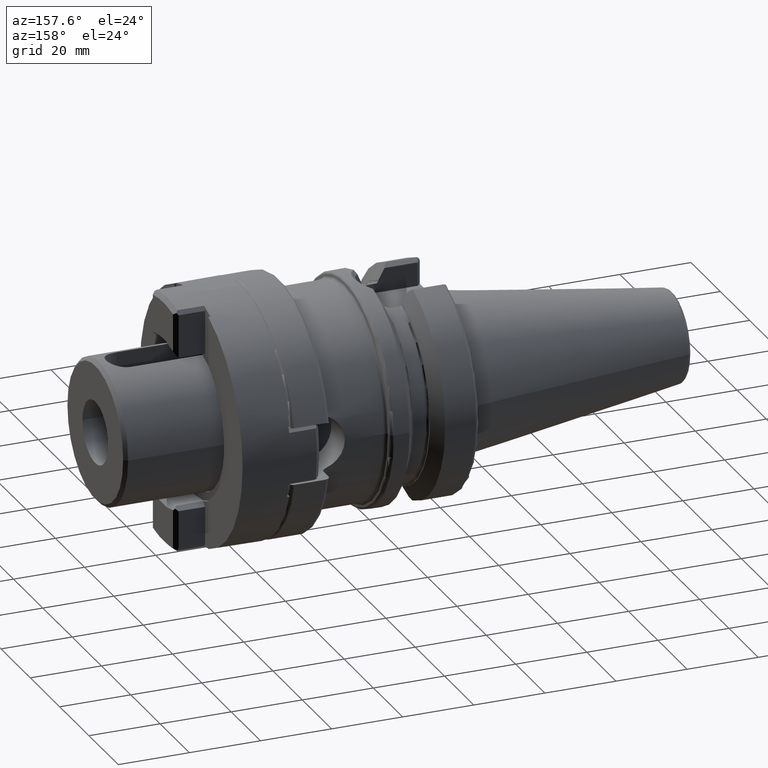
[diagram: clean part render]
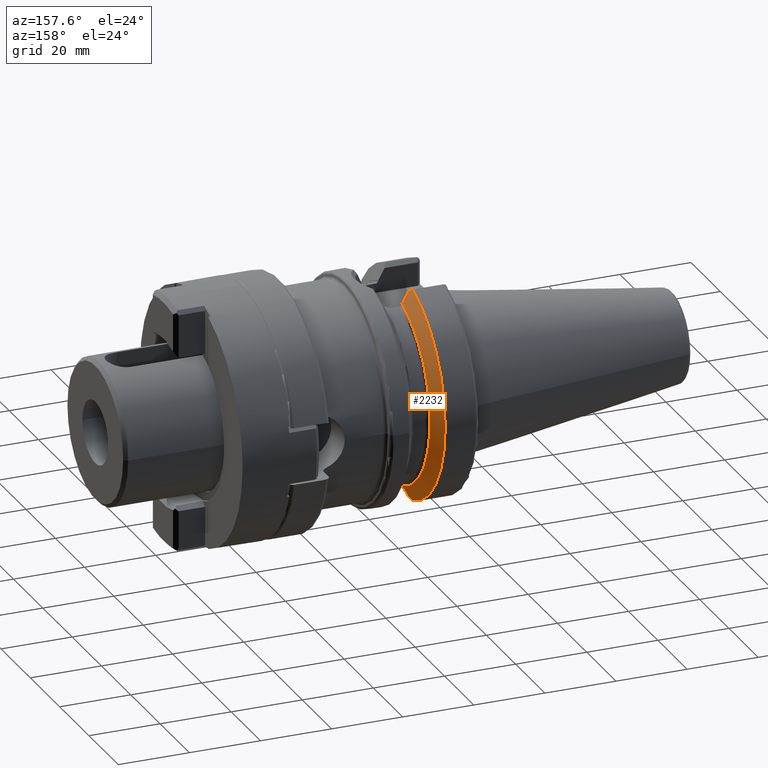
[diagram: same view with one face highlighted and labeled with its STEP entity id]
A machine part, auxiliary view. The second image highlights one B-rep face of the part: STEP entity #2232.
In plain terms, the highlighted conical surface has half-angle 60 deg.
Its self-contained STEP definition (entity closure, byte-faithful):
#155=CARTESIAN_POINT('',(1.212089730171E1,8.095E0,-2.944558475789E1));
#156=CARTESIAN_POINT('',(1.234623272522E1,8.095E0,-2.904081227564E1));
#157=CARTESIAN_POINT('',(1.279052069613E1,8.095E0,-2.824155997645E1));
#158=CARTESIAN_POINT('',(1.343761208926E1,8.095E0,-2.707376738597E1));
#159=CARTESIAN_POINT('',(1.385633764716E1,8.095E0,-2.631545873157E1));
#160=CARTESIAN_POINT('',(1.40625E1,8.095E0,-2.594139336151E1));
#200=CARTESIAN_POINT('',(1.40625E1,0.E0,0.E0));
#201=DIRECTION('',(1.E0,0.E0,0.E0));
#202=DIRECTION('',(0.E0,2.978832194960E-1,-9.546023190537E-1));
#203=AXIS2_PLACEMENT_3D('',#200,#201,#202);
#237=CARTESIAN_POINT('',(1.157272253103E1,0.E0,0.E0));
#238=DIRECTION('',(1.E0,0.E0,0.E0));
#239=DIRECTION('',(0.E0,2.875039130802E-1,-9.577794631143E-1));
#240=AXIS2_PLACEMENT_3D('',#237,#238,#239);
#622=CARTESIAN_POINT('',(1.212089730171E1,8.095E0,-2.944558475789E1));
#623=CARTESIAN_POINT('',(1.203210735485E1,8.251548423090E0,-2.956204177452E1));
#624=CARTESIAN_POINT('',(1.185196062668E1,8.567728822292E0,-2.979724967558E1));
#625=CARTESIAN_POINT('',(1.166666286204E1,8.890070036919E0,-3.003704063260E1));
#626=CARTESIAN_POINT('',(1.157272253103E1,9.052779463114E0,-3.015808084481E1));
#632=CARTESIAN_POINT('',(1.157272253103E1,9.393318983190E0,3.005375541808E1));
#633=CARTESIAN_POINT('',(1.170089151867E1,9.171323784651E0,2.989055444592E1));
#634=CARTESIAN_POINT('',(1.195252831620E1,8.732937755222E0,2.956827258282E1));
#635=CARTESIAN_POINT('',(1.219479613906E1,8.305773148711E0,2.925424020953E1));
#636=CARTESIAN_POINT('',(1.231359829731E1,8.095E0,2.909928918805E1));
#673=CARTESIAN_POINT('',(1.40625E1,8.095E0,2.594139336151E1));
#674=CARTESIAN_POINT('',(1.387619304722E1,8.095E0,2.627943267022E1));
#675=CARTESIAN_POINT('',(1.349822147379E1,8.095E0,2.696405968402E1));
#676=CARTESIAN_POINT('',(1.291532431893E1,8.095E0,2.801651320770E1));
#677=CARTESIAN_POINT('',(1.251595456147E1,8.095E0,2.873548878206E1));
#678=CARTESIAN_POINT('',(1.231359829731E1,8.095E0,2.909928918805E1));
#1676=CARTESIAN_POINT('',(1.40625E1,8.095E0,-2.594139336151E1));
#1677=CARTESIAN_POINT('',(1.40625E1,8.095E0,2.594139336151E1));
#1678=VERTEX_POINT('',#1676);
#1679=VERTEX_POINT('',#1677);
#1780=VERTEX_POINT('',#678);
#1788=VERTEX_POINT('',#155);
#1798=CARTESIAN_POINT('',(1.157272253103E1,9.052779463114E0,-3.015808084481E1));
#1799=CARTESIAN_POINT('',(1.157272253103E1,9.393318983190E0,3.005375541808E1));
#1800=VERTEX_POINT('',#1798);
#1801=VERTEX_POINT('',#1799);
#2215=CARTESIAN_POINT('',(1.281761126552E1,0.E0,0.E0));
#2216=DIRECTION('',(-1.E0,0.E0,0.E0));
#2217=DIRECTION('',(0.E0,1.E0,0.E0));
#2218=AXIS2_PLACEMENT_3D('',#2215,#2216,#2217);
#2219=CONICAL_SURFACE('',#2218,2.933128946210E1,6.E1);
#2221=ORIENTED_EDGE('',*,*,#2220,.F.);
#2223=ORIENTED_EDGE('',*,*,#2222,.F.);
#2224=ORIENTED_EDGE('',*,*,#2166,.T.);
#2225=ORIENTED_EDGE('',*,*,#2189,.T.);
#2227=ORIENTED_EDGE('',*,*,#2226,.T.);
#2229=ORIENTED_EDGE('',*,*,#2228,.F.);
#2230=EDGE_LOOP('',(#2221,#2223,#2224,#2225,#2227,#2229));
#2231=FACE_OUTER_BOUND('',#2230,.F.);
#2232=ADVANCED_FACE('',(#2231),#2219,.T.);
#161=B_SPLINE_CURVE_WITH_KNOTS('',3,(#155,#156,#157,#158,#159,#160),
.UNSPECIFIED.,.F.,.F.,(4,1,1,4),(0.E0,3.333333333333E-1,6.666666666667E-1,1.E0),
.UNSPECIFIED.);
#204=CIRCLE('',#203,2.717507892421E1);
#241=CIRCLE('',#240,3.14875E1);
#627=B_SPLINE_CURVE_WITH_KNOTS('',3,(#622,#623,#624,#625,#626),.UNSPECIFIED.,
.F.,.F.,(4,1,4),(0.E0,5.E-1,1.E0),.UNSPECIFIED.);
#637=B_SPLINE_CURVE_WITH_KNOTS('',3,(#632,#633,#634,#635,#636),.UNSPECIFIED.,
.F.,.F.,(4,1,4),(0.E0,5.E-1,1.E0),.UNSPECIFIED.);
#679=B_SPLINE_CURVE_WITH_KNOTS('',3,(#673,#674,#675,#676,#677,#678),
.UNSPECIFIED.,.F.,.F.,(4,1,1,4),(0.E0,3.333333333333E-1,6.666666666667E-1,1.E0),
.UNSPECIFIED.);
#2166=EDGE_CURVE('',#1788,#1678,#161,.T.);
#2189=EDGE_CURVE('',#1678,#1679,#204,.T.);
#2220=EDGE_CURVE('',#1800,#1801,#241,.T.);
#2222=EDGE_CURVE('',#1788,#1800,#627,.T.);
#2226=EDGE_CURVE('',#1679,#1780,#679,.T.);
#2228=EDGE_CURVE('',#1801,#1780,#637,.T.);